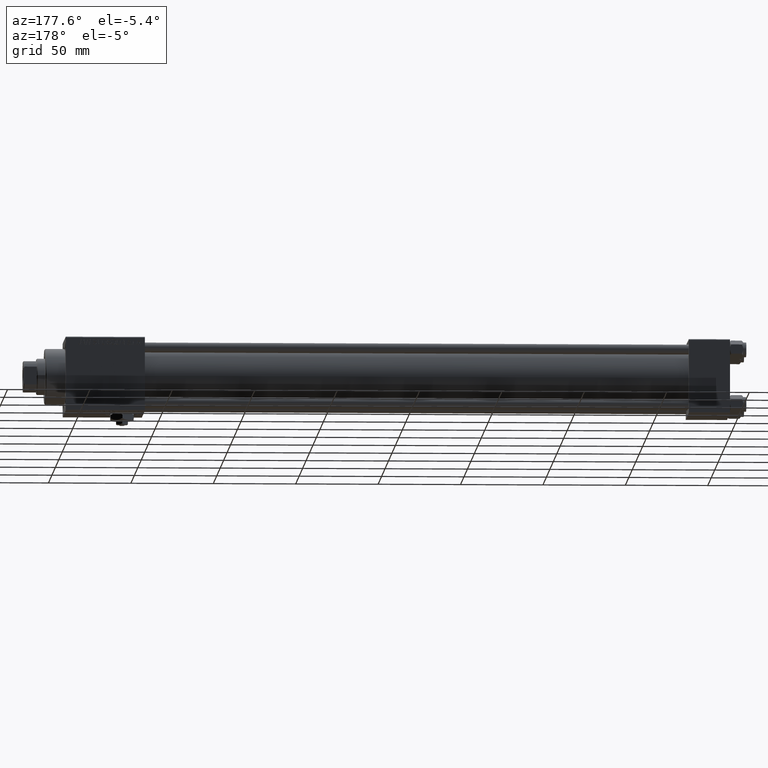
[diagram: clean part render]
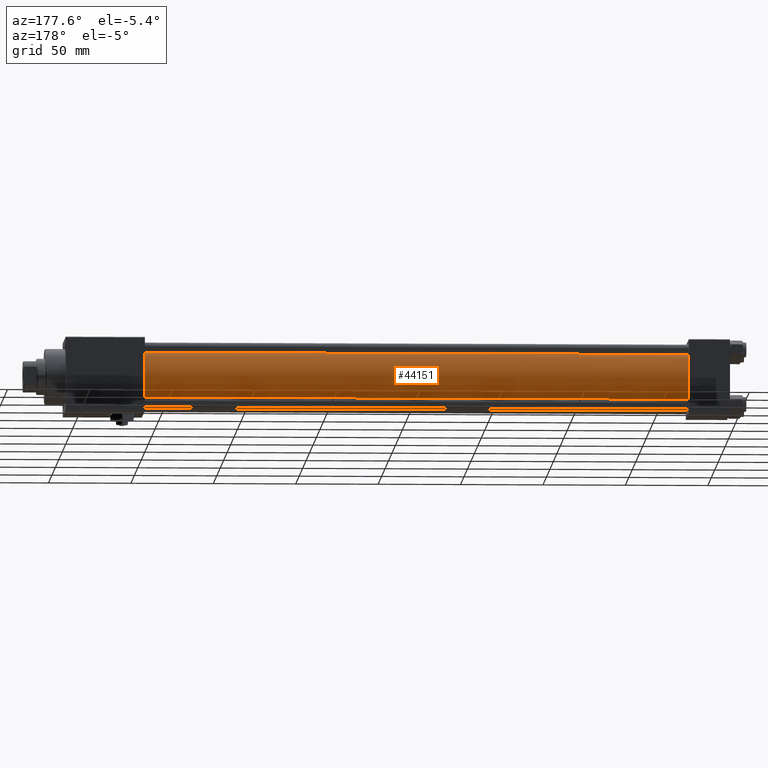
[diagram: same view with one face highlighted and labeled with its STEP entity id]
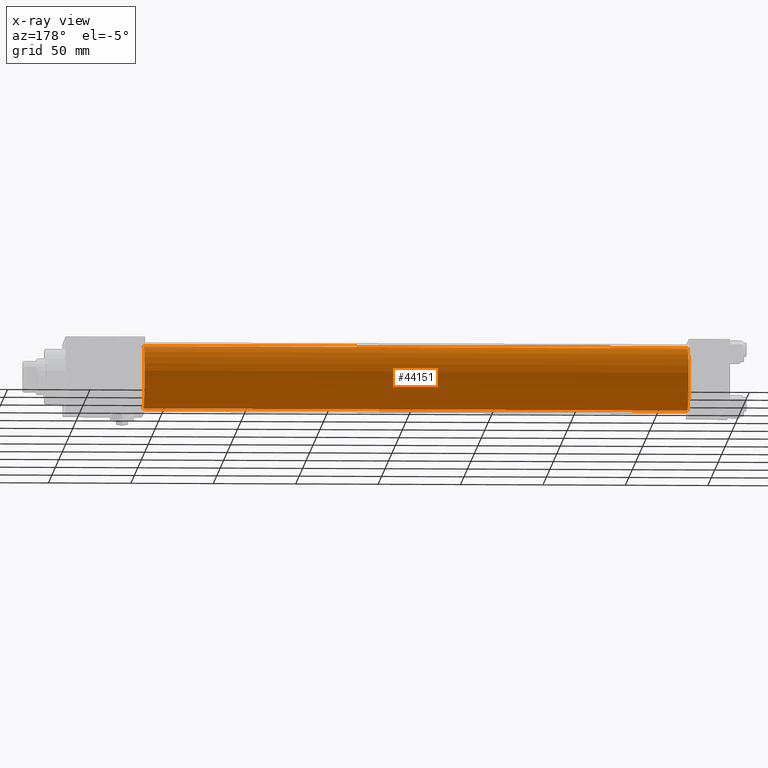
[diagram: x-ray of the same camera — body ghosted, the highlighted face saturated]
A machine part, auxiliary view. The second image highlights one B-rep face of the part: STEP entity #44151.
The next image is the same camera in x-ray: the body ghosted, the highlighted face saturated — about 0% of this face is hidden behind the body in this view.
In plain terms, the highlighted cylindrical surface (edge-blend (fillet) strip) has radius 19 mm, axis along (-1, -0, -0).
Its self-contained STEP definition (entity closure, byte-faithful):
#908 = EDGE_CURVE ( 'NONE', #39248, #35603, #34329, .T. ) ;
#3192 = CARTESIAN_POINT ( 'NONE',  ( 355.0000000000000568, -2.602085213965210642E-15, 0.000000000000000000 ) ) ;
#4291 = AXIS2_PLACEMENT_3D ( 'NONE', #35821, #8261, #24267 ) ;
#5012 = EDGE_CURVE ( 'NONE', #50965, #28946, #46306, .T. ) ;
#8261 = DIRECTION ( 'NONE',  ( 1.000000000000000000, -0.000000000000000000, 0.000000000000000000 ) ) ;
#12673 = FACE_OUTER_BOUND ( 'NONE', #45878, .T. ) ;
#14346 = ORIENTED_EDGE ( 'NONE', *, *, #38538, .T. ) ;
#16080 = AXIS2_PLACEMENT_3D ( 'NONE', #16609, #28431, #51752 ) ;
#16609 = CARTESIAN_POINT ( 'NONE',  ( 355.0000000000000568, -2.602085213965210642E-15, 0.000000000000000000 ) ) ;
#19194 = CARTESIAN_POINT ( 'NONE',  ( 355.0000000000000568, -2.752562955852396712E-16, -19.00000000000000000 ) ) ;
#19447 = DIRECTION ( 'NONE',  ( 1.000000000000000000, 0.000000000000000000, 0.000000000000000000 ) ) ;
#21933 = DIRECTION ( 'NONE',  ( -1.000000000000000000, -0.000000000000000000, -0.000000000000000000 ) ) ;
#24267 = DIRECTION ( 'NONE',  ( 0.000000000000000000, 0.000000000000000000, 1.000000000000000000 ) ) ;
#24752 = CYLINDRICAL_SURFACE ( 'NONE', #16080, 19.00000000000000000 ) ;
#27341 = ORIENTED_EDGE ( 'NONE', *, *, #5012, .T. ) ;
#28431 = DIRECTION ( 'NONE',  ( -1.000000000000000000, -0.000000000000000000, -0.000000000000000000 ) ) ;
#28609 = CIRCLE ( 'NONE', #4291, 19.00000000000000000 ) ;
#28946 = VERTEX_POINT ( 'NONE', #30844 ) ;
#30383 = DIRECTION ( 'NONE',  ( -1.000000000000000000, -0.000000000000000000, -0.000000000000000000 ) ) ;
#30844 = CARTESIAN_POINT ( 'NONE',  ( 25.00000000000002132, -2.752562955852396712E-16, -19.00000000000000000 ) ) ;
#34329 = LINE ( 'NONE', #38779, #37202 ) ;
#34668 = CIRCLE ( 'NONE', #42175, 19.00000000000000000 ) ;
#35455 = DIRECTION ( 'NONE',  ( 0.000000000000000000, 0.000000000000000000, -1.000000000000000000 ) ) ;
#35603 = VERTEX_POINT ( 'NONE', #45465 ) ;
#35821 = CARTESIAN_POINT ( 'NONE',  ( 25.00000000000002132, -2.602085213965210642E-15, 0.000000000000000000 ) ) ;
#37202 = VECTOR ( 'NONE', #30383, 1000.000000000000000 ) ;
#38538 = EDGE_CURVE ( 'NONE', #28946, #35603, #28609, .T. ) ;
#38779 = CARTESIAN_POINT ( 'NONE',  ( 355.0000000000000568, -2.602085213965210642E-15, 19.00000000000000000 ) ) ;
#38996 = VECTOR ( 'NONE', #21933, 1000.000000000000000 ) ;
#39248 = VERTEX_POINT ( 'NONE', #42756 ) ;
#41867 = CARTESIAN_POINT ( 'NONE',  ( 355.0000000000000568, -2.752562955852396712E-16, -19.00000000000000000 ) ) ;
#42175 = AXIS2_PLACEMENT_3D ( 'NONE', #3192, #19447, #35455 ) ;
#42756 = CARTESIAN_POINT ( 'NONE',  ( 355.0000000000000568, -2.602085213965210642E-15, 19.00000000000000000 ) ) ;
#44151 = ADVANCED_FACE ( 'NONE', ( #12673 ), #24752, .T. ) ;
#45465 = CARTESIAN_POINT ( 'NONE',  ( 25.00000000000002132, -2.602085213965210642E-15, 19.00000000000000000 ) ) ;
#45878 = EDGE_LOOP ( 'NONE', ( #48954, #27341, #14346, #46179 ) ) ;
#46179 = ORIENTED_EDGE ( 'NONE', *, *, #908, .F. ) ;
#46306 = LINE ( 'NONE', #41867, #38996 ) ;
#47088 = EDGE_CURVE ( 'NONE', #50965, #39248, #34668, .T. ) ;
#48954 = ORIENTED_EDGE ( 'NONE', *, *, #47088, .F. ) ;
#50965 = VERTEX_POINT ( 'NONE', #19194 ) ;
#51752 = DIRECTION ( 'NONE',  ( 0.000000000000000000, 0.000000000000000000, 1.000000000000000000 ) ) ;